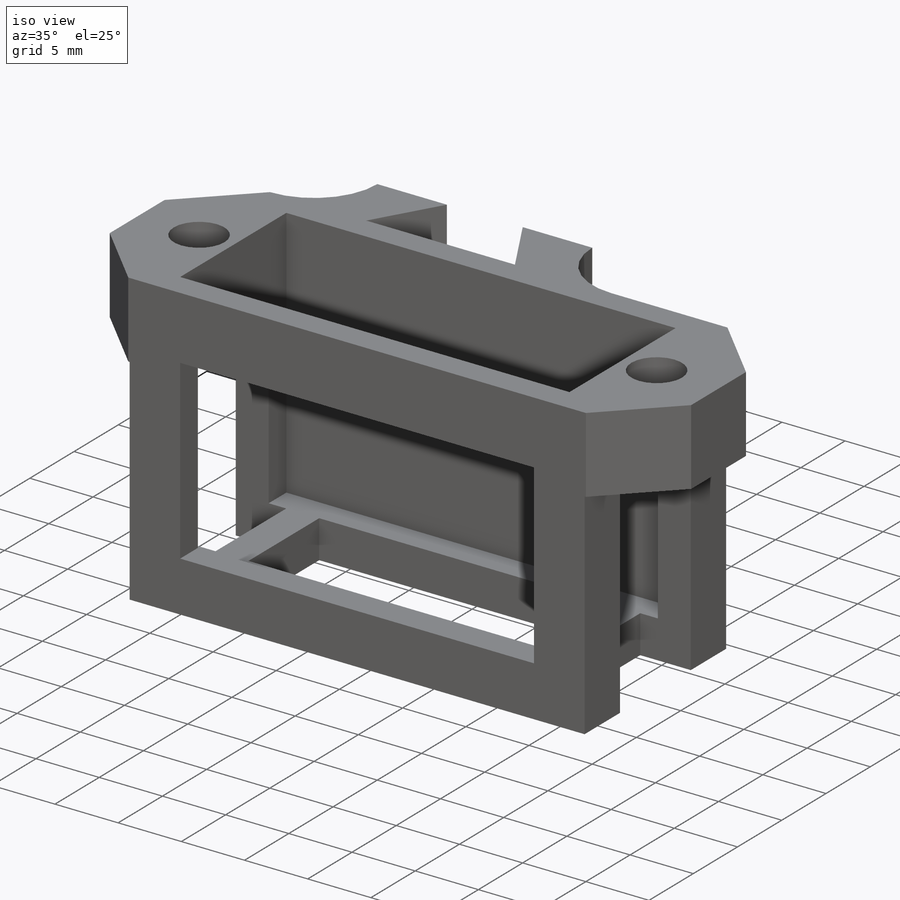
[diagram: iso view]
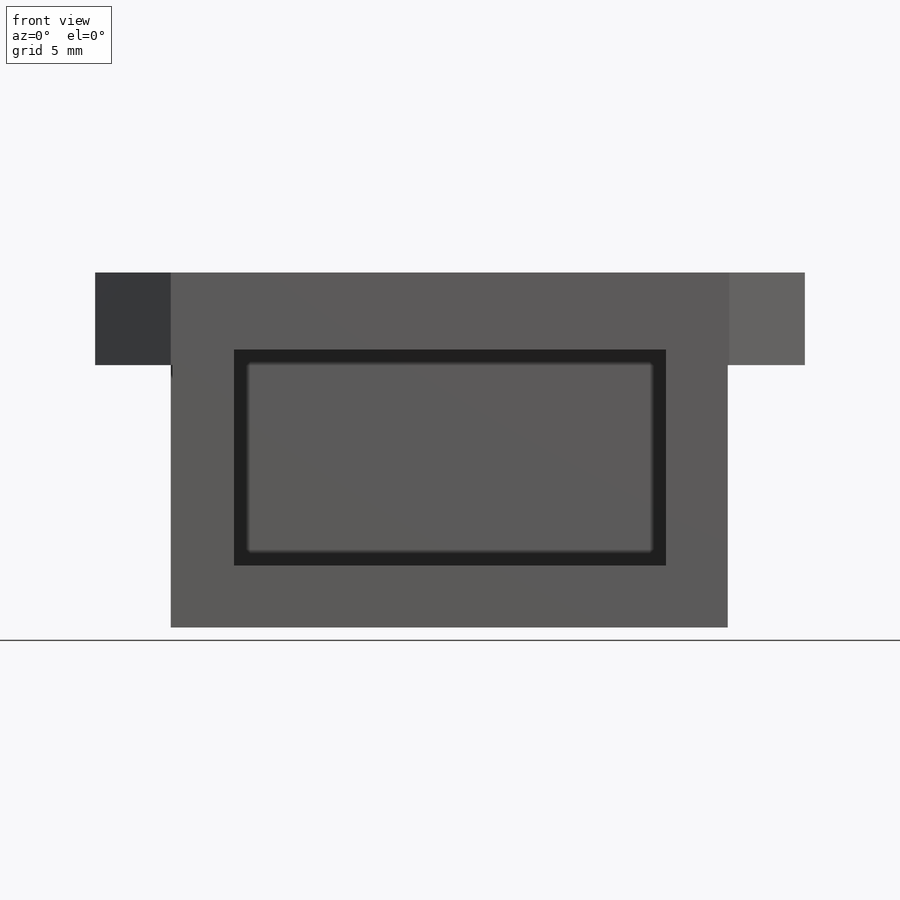
[diagram: front view]
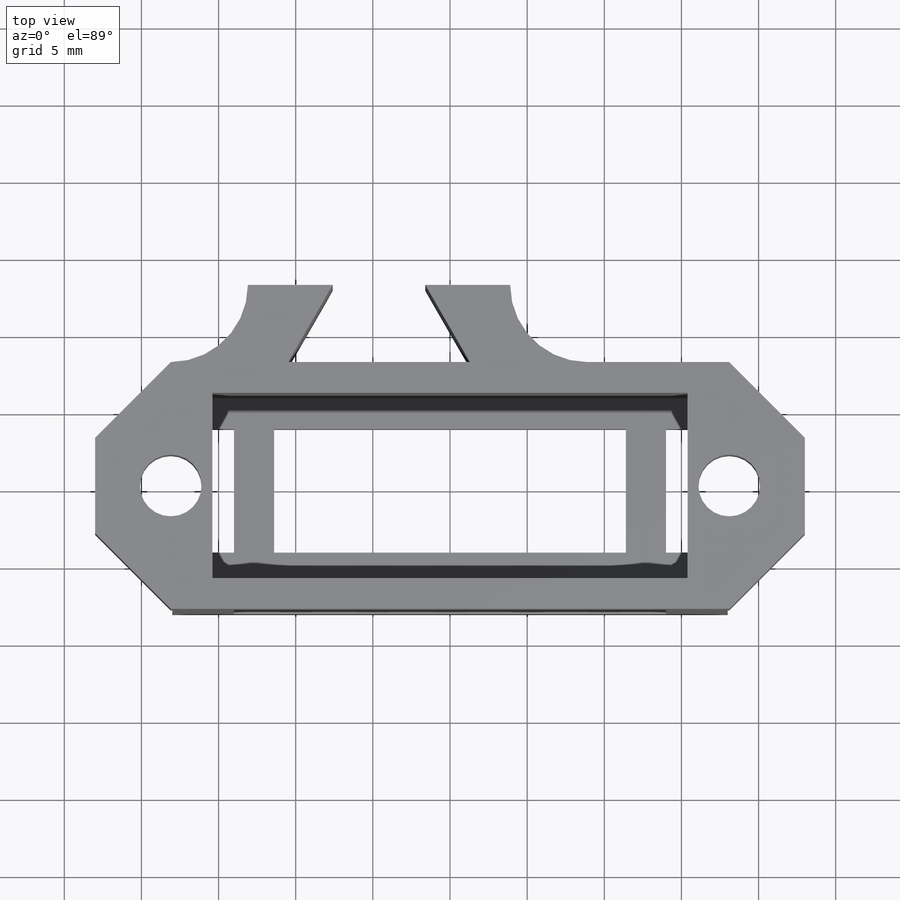
[diagram: top view]
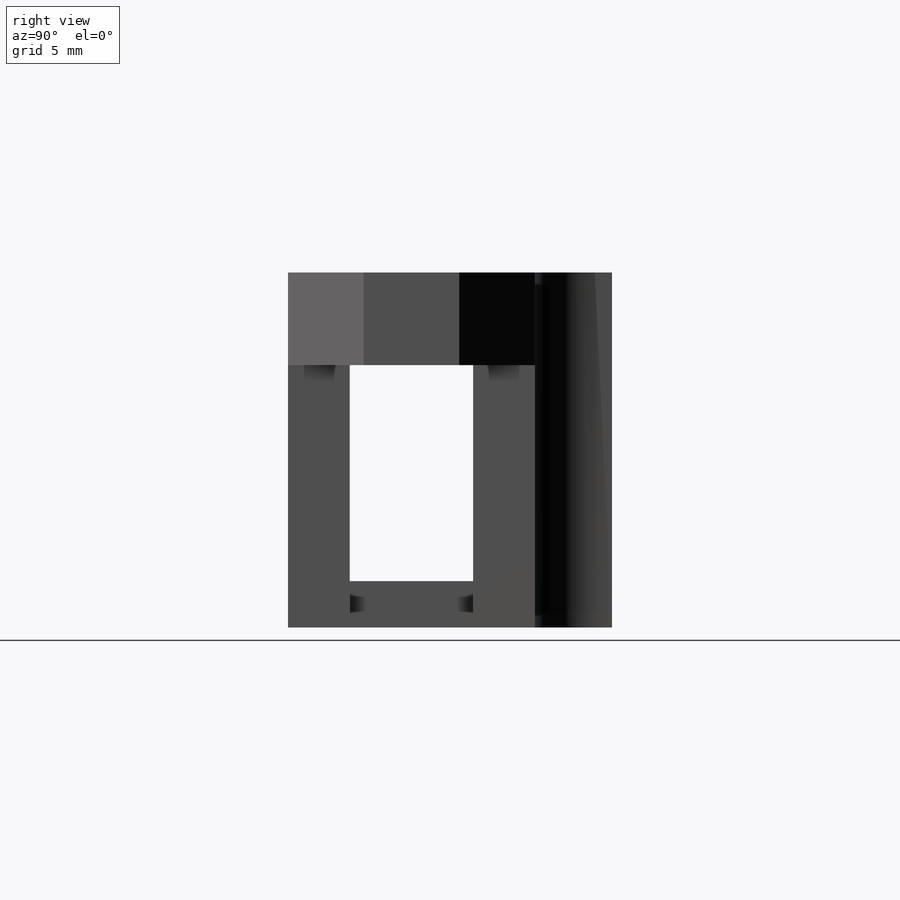
[diagram: right view]
SOLIDWORKS PART (.sldprt)
format: sldprt  version: not decoded by parser v0  size: 281,088 bytes
history: native  units: mm
features: sketch x6, cut_extrude x4, extrude x2, material x1 (+11 scaffold rows collapsed)
feature tree (24):
  scaffold x11  (default folders/planes/origin — collapsed)
  material  "Material <not specified>"
  sketch  "Sketch1"  dims[D1=30.0mm D2=30.0mm D3=20.0mm D4=3.0mm D5=3.0mm D6=5.0mm D7=6.0mm]
  extrude  "Extrude1"  Depth=16mm
  sketch  "Sketch2"  dims[c1.D4=4.0mm c1.D1=12.0mm c1.D2=30.8mm c1.D3=36.2mm c1.D5=46.0mm c2.D5=45.0deg c2.D6=46.0mm c3.D6=45.0deg c3.D5=2.0mm c4.D6=4.0mm c4.D7=4.0mm]
  cut_extrude  "Extrude2"  Depth=20mm
  sketch  "Sketch3"  dims[D1=4.0mm D2=4.0mm D3=4.0mm D4=5.0mm]
  cut_extrude  "Extrude3"  [1 undecoded]
  cut_extrude  "Extrude4"  [1 undecoded]
  sketch  "Sketch3<3>"  dims[D1=8.0mm]
  cut_extrude  "Extrude5"  [1 undecoded]
  sketch  "Sketch2<3>"
  sketch  "Sketch4"  dims[c1.D1=5.0mm c1.D2=17.0mm c1.D3=6.0mm c1.D4=5.5mm c2.D4=60.0deg]
  extrude  "Extrude6"  [1 undecoded]
decode coverage: 7 of 12 modeling features carry decoded parameters
note: 4 parameter values undecoded
summary: no parameter record found for 4 features
note: suppression state not decoded; provenance and decode notes live in map.json
